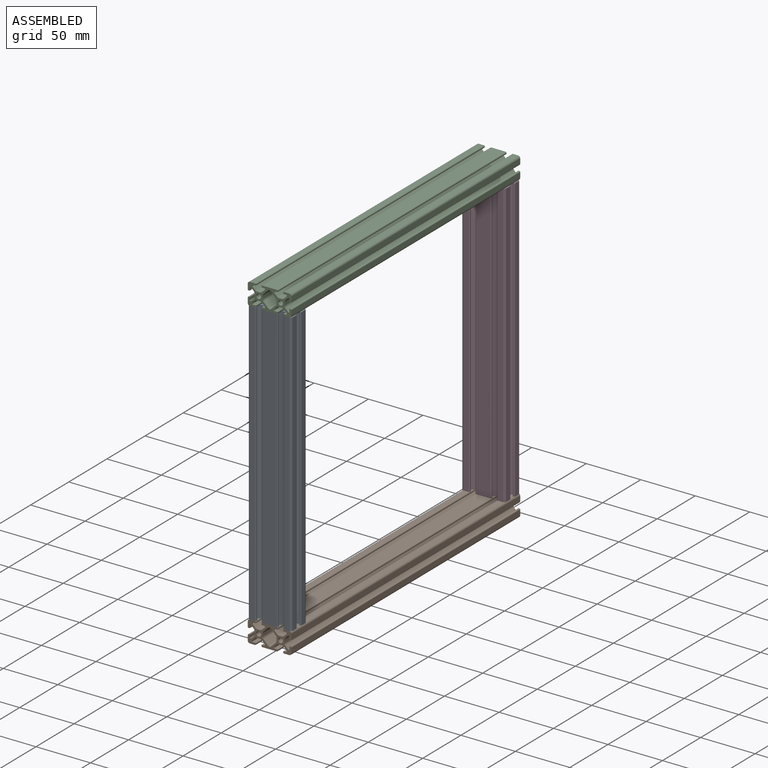
[diagram: assembled view]
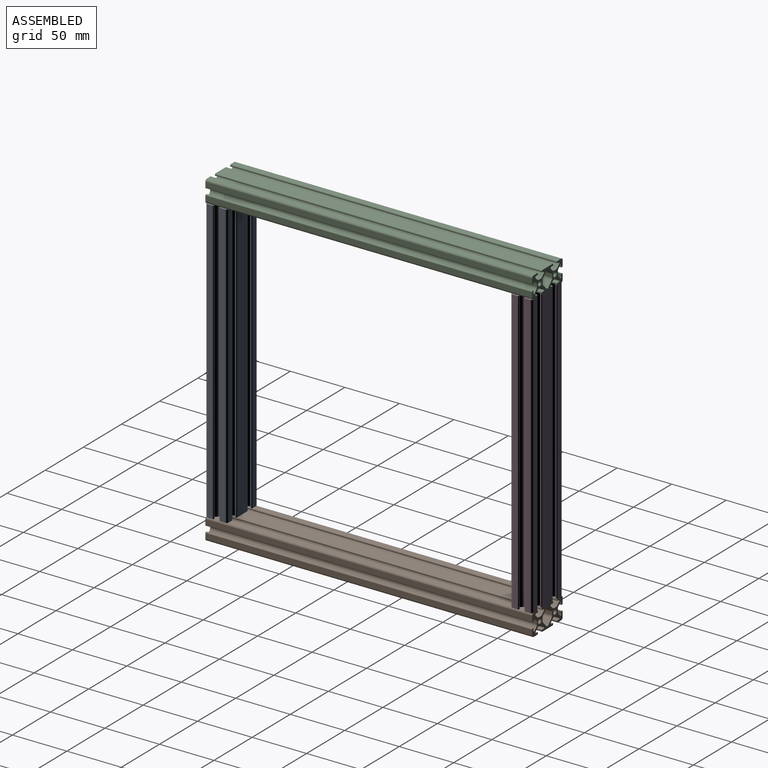
[diagram: assembled view, second angle]
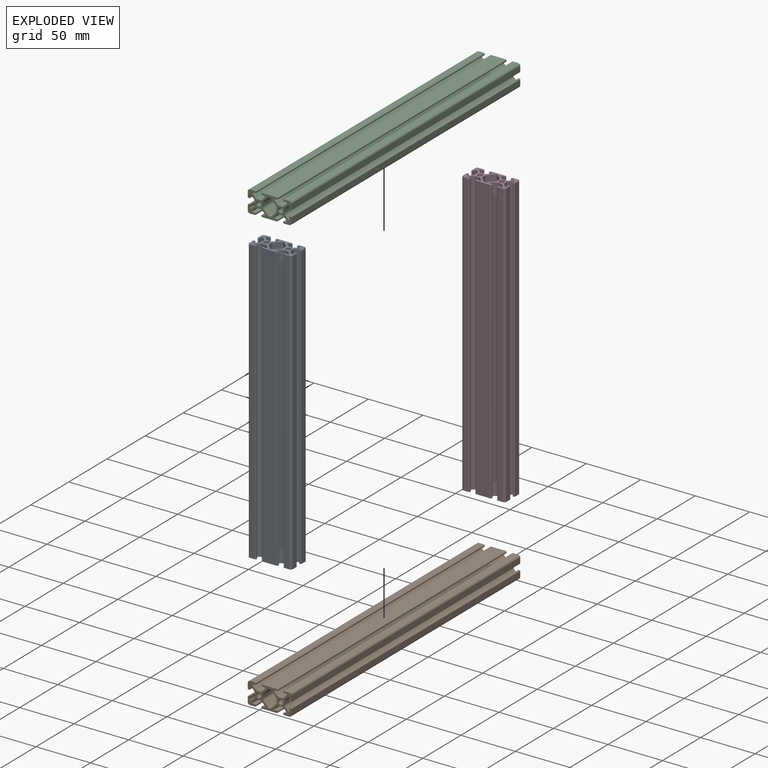
[diagram: exploded view]
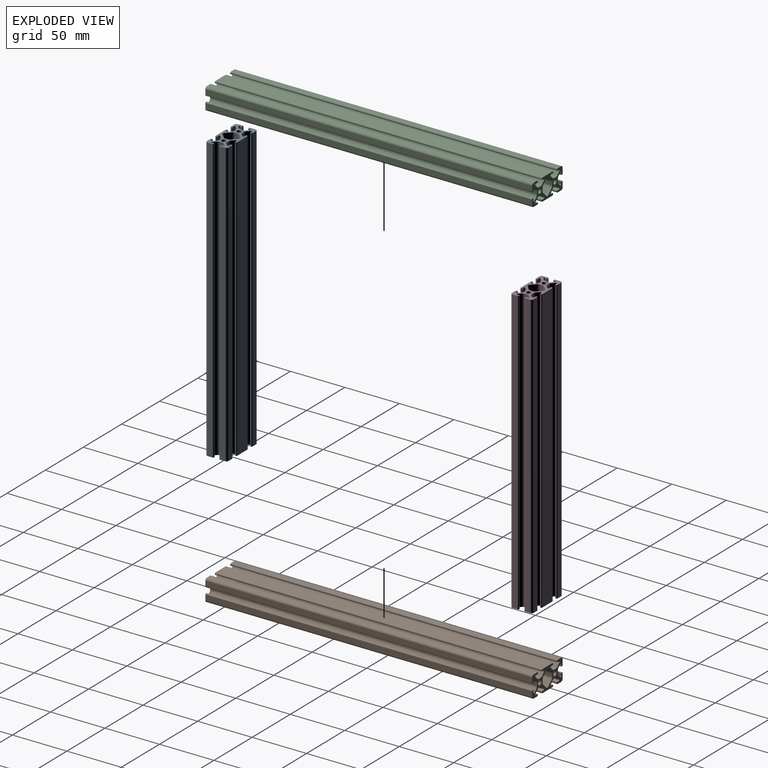
[diagram: exploded view, second angle]
ASSEMBLY  parts=4 mates=3
PART A: 120 faces, bbox 40x260x20 mm
  f0: plane 260x0.7mm, normal (0,0,1), area 182mm2, adj f66,f67,f118,f119
  f1: plane 260x4.63mm, normal (1,0,0), area 1202.5mm2, adj f67,f68,f118,f119
  f2: plane 260x4.63mm, normal (0,0,-1), area 1202.5mm2, adj f68,f69,f118,f119
  f3: plane 260x0.7mm, normal (1,0,0), area 182mm2, adj f71,f72,f118,f119
  f4: plane 260x13.25mm, normal (0,0,-1), area 3445mm2, adj f72,f73,f118,f119
  f5: plane 260x0.7mm, normal (-1,0,0), area 182mm2, adj f73,f74,f118,f119
  f6: plane 260x0.7mm, normal (1,0,0), area 182mm2, adj f75,f76,f118,f119
  f7: plane 260x4.63mm, normal (0,0,-1), area 1202.5mm2, adj f76,f77,f118,f119
  f8: plane 260x4.63mm, normal (-1,0,0), area 1202.5mm2, adj f77,f78,f118,f119
  f9: plane 260x0.7mm, normal (0,0,1), area 182mm2, adj f78,f79,f118,f119
  f10: plane 260x0.7mm, normal (0,0,-1), area 182mm2, adj f80,f81,f118,f119
  f11: plane 260x4.63mm, normal (-1,0,0), area 1202.5mm2, adj f81,f82,f118,f119
  f12: plane 260x4.63mm, normal (0,0,1), area 1202.5mm2, adj f82,f83,f118,f119
  f13: plane 260x0.7mm, normal (1,0,0), area 182mm2, adj f83,f84,f118,f119
  f14: plane 260x13.25mm, normal (0,0,1), area 3445mm2, adj f86,f87,f118,f119
  f15: plane 260x0.7mm, normal (1,0,0), area 182mm2, adj f87,f88,f118,f119
  f16: plane 260x4.63mm, normal (0,0,1), area 1202.5mm2, adj f90,f91,f118,f119
  f17: plane 260x4.63mm, normal (1,0,0), area 1202.5mm2, adj f91,f92,f118,f119
  f18: plane 260x0.7mm, normal (0,0,-1), area 182mm2, adj f92,f93,f118,f119
  f19: plane 260x0.7mm, normal (-1,0,0), area 182mm2, adj f69,f70,f118,f119
  f20: plane 260x0.7mm, normal (-1,0,0), area 182mm2, adj f85,f86,f118,f119
  f21: plane 260x0.7mm, normal (-1,0,0), area 182mm2, adj f89,f90,f118,f119
  f22: plane 260x4.06mm, normal (-0.71,0,0.71), area 1491.8mm2, adj f58,f59,f118,f119
  f23: plane 260x4.06mm, normal (0.71,0,0.71), area 1491.8mm2, adj f59,f60,f118,f119
  f24: plane 260x2.27mm, normal (1,0,0), area 590mm2, adj f60,f61,f118,f119
  f25: plane 260x4.06mm, normal (0.71,0,-0.71), area 1491.8mm2, adj f61,f62,f118,f119
  f26: plane 260x4.06mm, normal (-0.71,0,-0.71), area 1491.8mm2, adj f62,f63,f118,f119
  f27: plane 260x2.27mm, normal (-1,0,0), area 590mm2, adj f58,f63,f118,f119
  f28: plane 260x2.34mm, normal (0.71,0,0.71), area 860.3mm2, adj f94,f117,f118,f119
  f29: plane 260x2.17mm, normal (-1,0,0), area 564mm2, adj f66,f94,f118,f119
  f30: plane 260x2.17mm, normal (0,0,1), area 564mm2, adj f70,f95,f118,f119
  f31: plane 260x2.34mm, normal (-0.71,0,-0.71), area 860.3mm2, adj f95,f96,f118,f119
  f32: plane 260x2.27mm, normal (0,0,-1), area 590mm2, adj f96,f97,f118,f119
  f33: plane 260x2.34mm, normal (0.71,0,-0.71), area 860.3mm2, adj f97,f98,f118,f119
  f34: plane 260x2.17mm, normal (0,0,1), area 564mm2, adj f71,f98,f118,f119
  f35: plane 260x2.17mm, normal (0,0,1), area 564mm2, adj f74,f99,f118,f119
  f36: plane 260x2.34mm, normal (-0.71,0,-0.71), area 860.3mm2, adj f99,f100,f118,f119
  f37: plane 260x2.27mm, normal (0,0,-1), area 590mm2, adj f100,f101,f118,f119
  f38: plane 260x2.34mm, normal (0.71,0,-0.71), area 860.3mm2, adj f101,f102,f118,f119
  f39: plane 260x2.17mm, normal (0,0,1), area 564mm2, adj f75,f102,f118,f119
  f40: plane 260x2.17mm, normal (1,0,0), area 564mm2, adj f79,f103,f118,f119
  f41: plane 260x2.34mm, normal (-0.71,0,0.71), area 860.3mm2, adj f103,f104,f118,f119
  f42: plane 260x2.27mm, normal (-1,0,0), area 590mm2, adj f104,f105,f118,f119
  f43: plane 260x2.34mm, normal (-0.71,0,-0.71), area 860.3mm2, adj f105,f106,f118,f119
  f44: plane 260x2.17mm, normal (1,0,0), area 564mm2, adj f80,f106,f118,f119
  f45: plane 260x2.17mm, normal (0,0,-1), area 564mm2, adj f84,f107,f118,f119
  f46: plane 260x2.34mm, normal (0.71,0,0.71), area 860.3mm2, adj f107,f108,f118,f119
  f47: plane 260x2.27mm, normal (0,0,1), area 590mm2, adj f108,f109,f118,f119
  f48: plane 260x2.34mm, normal (-0.71,0,0.71), area 860.3mm2, adj f109,f110,f118,f119
  f49: plane 260x2.17mm, normal (0,0,-1), area 564mm2, adj f85,f110,f118,f119
  f50: plane 260x2.17mm, normal (0,0,-1), area 564mm2, adj f88,f111,f118,f119
  f51: plane 260x2.34mm, normal (0.71,0,0.71), area 860.3mm2, adj f111,f112,f118,f119
  f52: plane 260x2.27mm, normal (0,0,1), area 590mm2, adj f112,f113,f118,f119
  f53: plane 260x2.34mm, normal (-0.71,0,0.71), area 860.3mm2, adj f113,f114,f118,f119
  f54: plane 260x2.17mm, normal (0,0,-1), area 564mm2, adj f89,f114,f118,f119
  f55: plane 260x2.17mm, normal (-1,0,0), area 564mm2, adj f93,f115,f118,f119
  f56: plane 260x2.34mm, normal (0.71,0,-0.71), area 860.3mm2, adj f115,f116,f118,f119
  f57: plane 260x2.27mm, normal (1,0,0), area 590mm2, adj f116,f117,f118,f119
  f58: cylinder r=3mm len=260mm, axis (0,-1,0), area 612.6mm2, adj f22,f27,f118,f119
  f59: cylinder r=2mm len=260mm, axis (0,-1,0), area 816.8mm2, adj f22,f23,f118,f119
  f60: cylinder r=3mm len=260mm, axis (0,-1,0), area 612.6mm2, adj f23,f24,f118,f119
  f61: cylinder r=3mm len=260mm, axis (0,-1,0), area 612.6mm2, adj f24,f25,f118,f119
  f62: cylinder r=2mm len=260mm, axis (0,-1,0), area 816.8mm2, adj f25,f26,f118,f119
  f63: cylinder r=3mm len=260mm, axis (0,-1,0), area 612.6mm2, adj f26,f27,f118,f119
  f64: cylinder r=2.15mm len=260mm, axis (0,-1,0), area 3512.3mm2, adj f118,f119
  f65: cylinder r=2.15mm len=260mm, axis (0,-1,0), area 3512.3mm2, adj f118,f119
  f66: cylinder r=0.3mm len=260mm, axis (0,-1,0), area 122.5mm2, adj f0,f29,f118,f119
  f67: cylinder r=0.8mm len=260mm, axis (0,-1,0), area 326.7mm2, adj f0,f1,f118,f119
  f68: cylinder r=2mm len=260mm, axis (0,-1,0), area 816.8mm2, adj f1,f2,f118,f119
  f69: cylinder r=0.8mm len=260mm, axis (0,-1,0), area 326.7mm2, adj f2,f19,f118,f119
  f70: cylinder r=0.3mm len=260mm, axis (0,-1,0), area 122.5mm2, adj f19,f30,f118,f119
  f71: cylinder r=0.3mm len=260mm, axis (0,-1,0), area 122.5mm2, adj f3,f34,f118,f119
  f72: cylinder r=0.8mm len=260mm, axis (0,-1,0), area 326.7mm2, adj f3,f4,f118,f119
  f73: cylinder r=0.8mm len=260mm, axis (0,-1,0), area 326.7mm2, adj f4,f5,f118,f119
  f74: cylinder r=0.3mm len=260mm, axis (0,-1,0), area 122.5mm2, adj f5,f35,f118,f119
  f75: cylinder r=0.3mm len=260mm, axis (0,-1,0), area 122.5mm2, adj f6,f39,f118,f119
  f76: cylinder r=0.8mm len=260mm, axis (0,-1,0), area 326.7mm2, adj f6,f7,f118,f119
  f77: cylinder r=2mm len=260mm, axis (0,-1,0), area 816.8mm2, adj f7,f8,f118,f119
  f78: cylinder r=0.8mm len=260mm, axis (0,-1,0), area 326.7mm2, adj f8,f9,f118,f119
  f79: cylinder r=0.3mm len=260mm, axis (0,-1,0), area 122.5mm2, adj f9,f40,f118,f119
  f80: cylinder r=0.3mm len=260mm, axis (0,-1,0), area 122.5mm2, adj f10,f44,f118,f119
  f81: cylinder r=0.8mm len=260mm, axis (0,-1,0), area 326.7mm2, adj f10,f11,f118,f119
  f82: cylinder r=2mm len=260mm, axis (0,-1,0), area 816.8mm2, adj f11,f12,f118,f119
  f83: cylinder r=0.8mm len=260mm, axis (0,-1,0), area 326.7mm2, adj f12,f13,f118,f119
  f84: cylinder r=0.3mm len=260mm, axis (0,-1,0), area 122.5mm2, adj f13,f45,f118,f119
  f85: cylinder r=0.3mm len=260mm, axis (0,-1,0), area 122.5mm2, adj f20,f49,f118,f119
  f86: cylinder r=0.8mm len=260mm, axis (0,-1,0), area 326.7mm2, adj f14,f20,f118,f119
  f87: cylinder r=0.8mm len=260mm, axis (0,-1,0), area 326.7mm2, adj f14,f15,f118,f119
  f88: cylinder r=0.3mm len=260mm, axis (0,-1,0), area 122.5mm2, adj f15,f50,f118,f119
  f89: cylinder r=0.3mm len=260mm, axis (0,-1,0), area 122.5mm2, adj f21,f54,f118,f119
  f90: cylinder r=0.8mm len=260mm, axis (0,-1,0), area 326.7mm2, adj f16,f21,f118,f119
  f91: cylinder r=2mm len=260mm, axis (0,-1,0), area 816.8mm2, adj f16,f17,f118,f119
  f92: cylinder r=0.8mm len=260mm, axis (0,-1,0), area 326.7mm2, adj f17,f18,f118,f119
  f93: cylinder r=0.3mm len=260mm, axis (0,-1,0), area 122.5mm2, adj f18,f55,f118,f119
  f94: cylinder r=0.78mm len=260mm, axis (0,-1,0), area 477.8mm2, adj f28,f29,f118,f119
  f95: cylinder r=0.78mm len=260mm, axis (0,-1,0), area 477.8mm2, adj f30,f31,f118,f119
  f96: cylinder r=3mm len=260mm, axis (0,-1,0), area 612.6mm2, adj f31,f32,f118,f119
  f97: cylinder r=3mm len=260mm, axis (0,-1,0), area 612.6mm2, adj f32,f33,f118,f119
  f98: cylinder r=0.78mm len=260mm, axis (0,-1,0), area 477.8mm2, adj f33,f34,f118,f119
  f99: cylinder r=0.78mm len=260mm, axis (0,-1,0), area 477.8mm2, adj f35,f36,f118,f119
  f100: cylinder r=3mm len=260mm, axis (0,-1,0), area 612.6mm2, adj f36,f37,f118,f119
  f101: cylinder r=3mm len=260mm, axis (0,-1,0), area 612.6mm2, adj f37,f38,f118,f119
  f102: cylinder r=0.78mm len=260mm, axis (0,-1,0), area 477.8mm2, adj f38,f39,f118,f119
  f103: cylinder r=0.78mm len=260mm, axis (0,-1,0), area 477.8mm2, adj f40,f41,f118,f119
  f104: cylinder r=3mm len=260mm, axis (0,-1,0), area 612.6mm2, adj f41,f42,f118,f119
  f105: cylinder r=3mm len=260mm, axis (0,-1,0), area 612.6mm2, adj f42,f43,f118,f119
  f106: cylinder r=0.78mm len=260mm, axis (0,-1,0), area 477.8mm2, adj f43,f44,f118,f119
  f107: cylinder r=0.78mm len=260mm, axis (0,-1,0), area 477.8mm2, adj f45,f46,f118,f119
  f108: cylinder r=3mm len=260mm, axis (0,-1,0), area 612.6mm2, adj f46,f47,f118,f119
  f109: cylinder r=3mm len=260mm, axis (0,-1,0), area 612.6mm2, adj f47,f48,f118,f119
  f110: cylinder r=0.78mm len=260mm, axis (0,-1,0), area 477.8mm2, adj f48,f49,f118,f119
  f111: cylinder r=0.78mm len=260mm, axis (0,-1,0), area 477.8mm2, adj f50,f51,f118,f119
  f112: cylinder r=3mm len=260mm, axis (0,-1,0), area 612.6mm2, adj f51,f52,f118,f119
  f113: cylinder r=3mm len=260mm, axis (0,-1,0), area 612.6mm2, adj f52,f53,f118,f119
  f114: cylinder r=0.78mm len=260mm, axis (0,-1,0), area 477.8mm2, adj f53,f54,f118,f119
  f115: cylinder r=0.78mm len=260mm, axis (0,-1,0), area 477.8mm2, adj f55,f56,f118,f119
  f116: cylinder r=3mm len=260mm, axis (0,-1,0), area 612.6mm2, adj f56,f57,f118,f119
  f117: cylinder r=3mm len=260mm, axis (0,-1,0), area 612.6mm2, adj f28,f57,f118,f119
  f118: plane 40x20mm, normal (0,1,0), area 328.8mm2, adj f0,f1,f2,f3,f4,f5,f6,f7
  f119: plane 40x20mm, normal (0,-1,0), area 328.8mm2, adj f0,f1,f2,f3,f4,f5,f6,f7
PART B: 120 faces, bbox 40x300x20 mm
  f0: plane 300x4.06mm, normal (-0.71,0,0.71), area 1721.3mm2, adj f58,f59,f118,f119
  f1: plane 300x4.06mm, normal (0.71,0,0.71), area 1721.3mm2, adj f59,f60,f118,f119
  f2: plane 300x2.27mm, normal (1,0,0), area 680.7mm2, adj f60,f61,f118,f119
  f3: plane 300x4.06mm, normal (0.71,0,-0.71), area 1721.3mm2, adj f61,f62,f118,f119
  f4: plane 300x4.06mm, normal (-0.71,0,-0.71), area 1721.3mm2, adj f62,f63,f118,f119
  f5: plane 300x2.27mm, normal (-1,0,0), area 680.7mm2, adj f58,f63,f118,f119
  f6: plane 300x2.34mm, normal (0.71,0,0.71), area 992.7mm2, adj f94,f117,f118,f119
  f7: plane 300x2.17mm, normal (-1,0,0), area 650.7mm2, adj f66,f94,f118,f119
  f8: plane 300x0.7mm, normal (0,0,1), area 210mm2, adj f66,f67,f118,f119
  f9: plane 300x4.63mm, normal (1,0,0), area 1387.5mm2, adj f67,f68,f118,f119
  f10: plane 300x4.63mm, normal (0,0,-1), area 1387.5mm2, adj f68,f69,f118,f119
  f11: plane 300x2.17mm, normal (0,0,1), area 650.7mm2, adj f70,f95,f118,f119
  f12: plane 300x2.34mm, normal (-0.71,0,-0.71), area 992.7mm2, adj f95,f96,f118,f119
  f13: plane 300x2.27mm, normal (0,0,-1), area 680.7mm2, adj f96,f97,f118,f119
  f14: plane 300x2.34mm, normal (0.71,0,-0.71), area 992.7mm2, adj f97,f98,f118,f119
  f15: plane 300x2.17mm, normal (0,0,1), area 650.7mm2, adj f71,f98,f118,f119
  f16: plane 300x0.7mm, normal (1,0,0), area 210mm2, adj f71,f72,f118,f119
  f17: plane 300x13.25mm, normal (0,0,-1), area 3975mm2, adj f72,f73,f118,f119
  f18: plane 300x0.7mm, normal (-1,0,0), area 210mm2, adj f73,f74,f118,f119
  f19: plane 300x2.17mm, normal (0,0,1), area 650.7mm2, adj f74,f99,f118,f119
  f20: plane 300x2.34mm, normal (-0.71,0,-0.71), area 992.7mm2, adj f99,f100,f118,f119
  f21: plane 300x2.27mm, normal (0,0,-1), area 680.7mm2, adj f100,f101,f118,f119
  f22: plane 300x2.34mm, normal (0.71,0,-0.71), area 992.7mm2, adj f101,f102,f118,f119
  f23: plane 300x2.17mm, normal (0,0,1), area 650.7mm2, adj f75,f102,f118,f119
  f24: plane 300x0.7mm, normal (1,0,0), area 210mm2, adj f75,f76,f118,f119
  f25: plane 300x4.63mm, normal (0,0,-1), area 1387.5mm2, adj f76,f77,f118,f119
  f26: plane 300x4.63mm, normal (-1,0,0), area 1387.5mm2, adj f77,f78,f118,f119
  f27: plane 300x0.7mm, normal (0,0,1), area 210mm2, adj f78,f79,f118,f119
  f28: plane 300x2.17mm, normal (1,0,0), area 650.7mm2, adj f79,f103,f118,f119
  f29: plane 300x2.34mm, normal (-0.71,0,0.71), area 992.7mm2, adj f103,f104,f118,f119
  f30: plane 300x2.27mm, normal (-1,0,0), area 680.7mm2, adj f104,f105,f118,f119
  f31: plane 300x2.34mm, normal (-0.71,0,-0.71), area 992.7mm2, adj f105,f106,f118,f119
  f32: plane 300x2.17mm, normal (1,0,0), area 650.7mm2, adj f80,f106,f118,f119
  f33: plane 300x0.7mm, normal (0,0,-1), area 210mm2, adj f80,f81,f118,f119
  f34: plane 300x4.63mm, normal (-1,0,0), area 1387.5mm2, adj f81,f82,f118,f119
  f35: plane 300x4.63mm, normal (0,0,1), area 1387.5mm2, adj f82,f83,f118,f119
  f36: plane 300x0.7mm, normal (1,0,0), area 210mm2, adj f83,f84,f118,f119
  f37: plane 300x2.17mm, normal (0,0,-1), area 650.7mm2, adj f84,f107,f118,f119
  f38: plane 300x2.34mm, normal (0.71,0,0.71), area 992.7mm2, adj f107,f108,f118,f119
  f39: plane 300x2.27mm, normal (0,0,1), area 680.7mm2, adj f108,f109,f118,f119
  f40: plane 300x2.34mm, normal (-0.71,0,0.71), area 992.7mm2, adj f109,f110,f118,f119
  f41: plane 300x2.17mm, normal (0,0,-1), area 650.7mm2, adj f85,f110,f118,f119
  f42: plane 300x13.25mm, normal (0,0,1), area 3975mm2, adj f86,f87,f118,f119
  f43: plane 300x0.7mm, normal (1,0,0), area 210mm2, adj f87,f88,f118,f119
  f44: plane 300x2.17mm, normal (0,0,-1), area 650.7mm2, adj f88,f111,f118,f119
  f45: plane 300x2.34mm, normal (0.71,0,0.71), area 992.7mm2, adj f111,f112,f118,f119
  f46: plane 300x2.27mm, normal (0,0,1), area 680.7mm2, adj f112,f113,f118,f119
  f47: plane 300x2.34mm, normal (-0.71,0,0.71), area 992.7mm2, adj f113,f114,f118,f119
  f48: plane 300x2.17mm, normal (0,0,-1), area 650.7mm2, adj f89,f114,f118,f119
  f49: plane 300x4.63mm, normal (0,0,1), area 1387.5mm2, adj f90,f91,f118,f119
  f50: plane 300x4.63mm, normal (1,0,0), area 1387.5mm2, adj f91,f92,f118,f119
  f51: plane 300x0.7mm, normal (0,0,-1), area 210mm2, adj f92,f93,f118,f119
  f52: plane 300x2.17mm, normal (-1,0,0), area 650.7mm2, adj f93,f115,f118,f119
  f53: plane 300x2.34mm, normal (0.71,0,-0.71), area 992.7mm2, adj f115,f116,f118,f119
  f54: plane 300x2.27mm, normal (1,0,0), area 680.7mm2, adj f116,f117,f118,f119
  f55: plane 300x0.7mm, normal (-1,0,0), area 210mm2, adj f69,f70,f118,f119
  f56: plane 300x0.7mm, normal (-1,0,0), area 210mm2, adj f85,f86,f118,f119
  f57: plane 300x0.7mm, normal (-1,0,0), area 210mm2, adj f89,f90,f118,f119
  f58: cylinder r=3mm len=300mm, axis (0,-1,0), area 706.9mm2, adj f0,f5,f118,f119
  f59: cylinder r=2mm len=300mm, axis (0,-1,0), area 942.5mm2, adj f0,f1,f118,f119
  f60: cylinder r=3mm len=300mm, axis (0,-1,0), area 706.9mm2, adj f1,f2,f118,f119
  f61: cylinder r=3mm len=300mm, axis (0,-1,0), area 706.9mm2, adj f2,f3,f118,f119
  f62: cylinder r=2mm len=300mm, axis (0,-1,0), area 942.5mm2, adj f3,f4,f118,f119
  f63: cylinder r=3mm len=300mm, axis (0,-1,0), area 706.9mm2, adj f4,f5,f118,f119
  f64: cylinder r=2.15mm len=300mm, axis (0,-1,0), area 4052.7mm2, adj f118,f119
  f65: cylinder r=2.15mm len=300mm, axis (0,-1,0), area 4052.7mm2, adj f118,f119
  f66: cylinder r=0.3mm len=300mm, axis (0,-1,0), area 141.4mm2, adj f7,f8,f118,f119
  f67: cylinder r=0.8mm len=300mm, axis (0,-1,0), area 377mm2, adj f8,f9,f118,f119
  f68: cylinder r=2mm len=300mm, axis (0,-1,0), area 942.5mm2, adj f9,f10,f118,f119
  f69: cylinder r=0.8mm len=300mm, axis (0,-1,0), area 377mm2, adj f10,f55,f118,f119
  f70: cylinder r=0.3mm len=300mm, axis (0,-1,0), area 141.4mm2, adj f11,f55,f118,f119
  f71: cylinder r=0.3mm len=300mm, axis (0,-1,0), area 141.4mm2, adj f15,f16,f118,f119
  f72: cylinder r=0.8mm len=300mm, axis (0,-1,0), area 377mm2, adj f16,f17,f118,f119
  f73: cylinder r=0.8mm len=300mm, axis (0,-1,0), area 377mm2, adj f17,f18,f118,f119
  f74: cylinder r=0.3mm len=300mm, axis (0,-1,0), area 141.4mm2, adj f18,f19,f118,f119
  f75: cylinder r=0.3mm len=300mm, axis (0,-1,0), area 141.4mm2, adj f23,f24,f118,f119
  f76: cylinder r=0.8mm len=300mm, axis (0,-1,0), area 377mm2, adj f24,f25,f118,f119
  f77: cylinder r=2mm len=300mm, axis (0,-1,0), area 942.5mm2, adj f25,f26,f118,f119
  f78: cylinder r=0.8mm len=300mm, axis (0,-1,0), area 377mm2, adj f26,f27,f118,f119
  f79: cylinder r=0.3mm len=300mm, axis (0,-1,0), area 141.4mm2, adj f27,f28,f118,f119
  f80: cylinder r=0.3mm len=300mm, axis (0,-1,0), area 141.4mm2, adj f32,f33,f118,f119
  f81: cylinder r=0.8mm len=300mm, axis (0,-1,0), area 377mm2, adj f33,f34,f118,f119
  f82: cylinder r=2mm len=300mm, axis (0,-1,0), area 942.5mm2, adj f34,f35,f118,f119
  f83: cylinder r=0.8mm len=300mm, axis (0,-1,0), area 377mm2, adj f35,f36,f118,f119
  f84: cylinder r=0.3mm len=300mm, axis (0,-1,0), area 141.4mm2, adj f36,f37,f118,f119
  f85: cylinder r=0.3mm len=300mm, axis (0,-1,0), area 141.4mm2, adj f41,f56,f118,f119
  f86: cylinder r=0.8mm len=300mm, axis (0,-1,0), area 377mm2, adj f42,f56,f118,f119
  f87: cylinder r=0.8mm len=300mm, axis (0,-1,0), area 377mm2, adj f42,f43,f118,f119
  f88: cylinder r=0.3mm len=300mm, axis (0,-1,0), area 141.4mm2, adj f43,f44,f118,f119
  f89: cylinder r=0.3mm len=300mm, axis (0,-1,0), area 141.4mm2, adj f48,f57,f118,f119
  f90: cylinder r=0.8mm len=300mm, axis (0,-1,0), area 377mm2, adj f49,f57,f118,f119
  f91: cylinder r=2mm len=300mm, axis (0,-1,0), area 942.5mm2, adj f49,f50,f118,f119
  f92: cylinder r=0.8mm len=300mm, axis (0,-1,0), area 377mm2, adj f50,f51,f118,f119
  f93: cylinder r=0.3mm len=300mm, axis (0,-1,0), area 141.4mm2, adj f51,f52,f118,f119
  f94: cylinder r=0.78mm len=300mm, axis (0,-1,0), area 551.3mm2, adj f6,f7,f118,f119
  f95: cylinder r=0.78mm len=300mm, axis (0,-1,0), area 551.3mm2, adj f11,f12,f118,f119
  f96: cylinder r=3mm len=300mm, axis (0,-1,0), area 706.9mm2, adj f12,f13,f118,f119
  f97: cylinder r=3mm len=300mm, axis (0,-1,0), area 706.9mm2, adj f13,f14,f118,f119
  f98: cylinder r=0.78mm len=300mm, axis (0,-1,0), area 551.3mm2, adj f14,f15,f118,f119
  f99: cylinder r=0.78mm len=300mm, axis (0,-1,0), area 551.3mm2, adj f19,f20,f118,f119
  f100: cylinder r=3mm len=300mm, axis (0,-1,0), area 706.9mm2, adj f20,f21,f118,f119
  f101: cylinder r=3mm len=300mm, axis (0,-1,0), area 706.9mm2, adj f21,f22,f118,f119
  f102: cylinder r=0.78mm len=300mm, axis (0,-1,0), area 551.3mm2, adj f22,f23,f118,f119
  f103: cylinder r=0.78mm len=300mm, axis (0,-1,0), area 551.3mm2, adj f28,f29,f118,f119
  f104: cylinder r=3mm len=300mm, axis (0,-1,0), area 706.9mm2, adj f29,f30,f118,f119
  f105: cylinder r=3mm len=300mm, axis (0,-1,0), area 706.9mm2, adj f30,f31,f118,f119
  f106: cylinder r=0.78mm len=300mm, axis (0,-1,0), area 551.3mm2, adj f31,f32,f118,f119
  f107: cylinder r=0.78mm len=300mm, axis (0,-1,0), area 551.3mm2, adj f37,f38,f118,f119
  f108: cylinder r=3mm len=300mm, axis (0,-1,0), area 706.9mm2, adj f38,f39,f118,f119
  f109: cylinder r=3mm len=300mm, axis (0,-1,0), area 706.9mm2, adj f39,f40,f118,f119
  f110: cylinder r=0.78mm len=300mm, axis (0,-1,0), area 551.3mm2, adj f40,f41,f118,f119
  f111: cylinder r=0.78mm len=300mm, axis (0,-1,0), area 551.3mm2, adj f44,f45,f118,f119
  f112: cylinder r=3mm len=300mm, axis (0,-1,0), area 706.9mm2, adj f45,f46,f118,f119
  f113: cylinder r=3mm len=300mm, axis (0,-1,0), area 706.9mm2, adj f46,f47,f118,f119
  f114: cylinder r=0.78mm len=300mm, axis (0,-1,0), area 551.3mm2, adj f47,f48,f118,f119
  f115: cylinder r=0.78mm len=300mm, axis (0,-1,0), area 551.3mm2, adj f52,f53,f118,f119
  f116: cylinder r=3mm len=300mm, axis (0,-1,0), area 706.9mm2, adj f53,f54,f118,f119
  f117: cylinder r=3mm len=300mm, axis (0,-1,0), area 706.9mm2, adj f6,f54,f118,f119
  f118: plane 40x20mm, normal (0,1,0), area 328.8mm2, adj f0,f1,f2,f3,f4,f5,f6,f7
  f119: plane 40x20mm, normal (0,-1,0), area 328.8mm2, adj f0,f1,f2,f3,f4,f5,f6,f7
PART C: same geometry as B
PART D: same geometry as A
PLACE A rot(axis=(1,0,0),90deg) t=(-241.4,-558.3,280.11)mm
PLACE B rot(axis=(0,1,0),0deg) t=(-241.4,-258.3,20.11)mm
PLACE C t=(-241.4,-258.3,300.11)mm
PLACE D rot(axis=(1,0,0),90deg) t=(-241.4,-278.3,280.11)mm
MATE fastened A.f119 <-> B.f42  axis (0,0,-1) through (-234.78,-558.3,20.11)mm
MATE fastened C.f17 <-> D.f118  axis (0,0,-1) through (-234.78,-258.3,280.11)mm
MATE fastened B.f42 <-> D.f119  axis (0,0,1) through (-234.78,-258.3,20.11)mm
